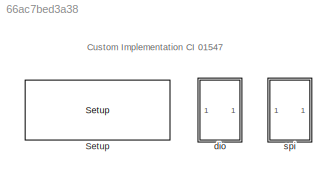
MODEL slx_66ac7bed3a38
KIND model
CONFIG AbsTol = auto
CONFIG EnableMultiTasking = off
CONFIG FixedStep = auto
CONFIG MaxStep = auto
CONFIG MinStep = auto
CONFIG PreLoadFcn = if ~exist('Ts', 'var')\nTs = 0.001;\nend\nif ~exist('FPGA_Frequency', 'var')\nFPGA_Frequency = 75000000;\nend\n
CONFIG RelTol = 1e-3
CONFIG SampleTimeConstraint = Unconstrained
CONFIG Solver = VariableStepAuto
CONFIG SolverName = VariableStepAuto
CONFIG StartTime = 0.0
CONFIG StopTime = 10.0
BLOCK [Reference] Setup  REF=speedgoatlib_fpga/Setup/Setup
  Ports = []
  SourceBlock = speedgoatlib_fpga/Setup/Setup
  SourceProductName = Simulink Real-Time: Speedgoat I/O Driver Library
  SourceType = setup_IO316-IO318, IO331
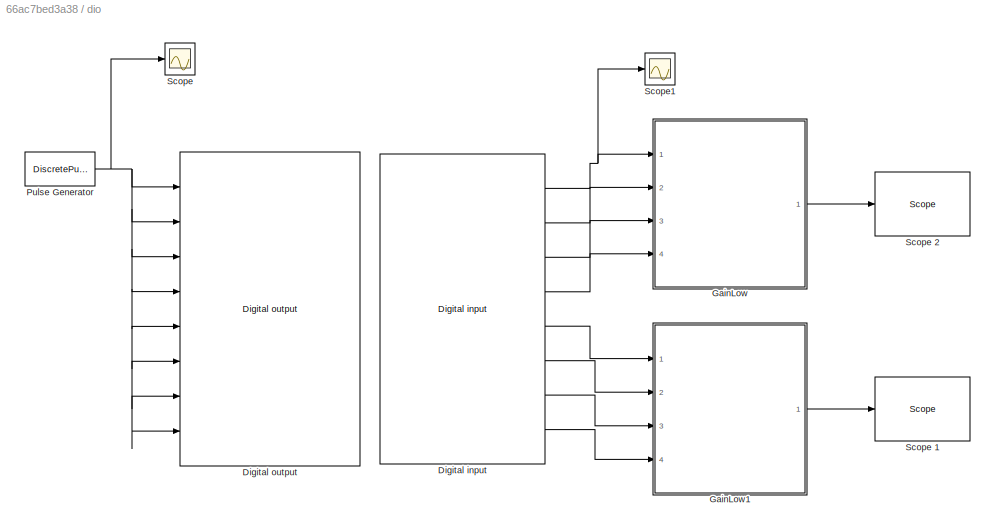
BLOCK [SubSystem] dio
  Ports = []
  RequestExecContextInheritance = off
  Variant = off
BLOCK [Reference] dio/Digital input  REF=speedgoatlib_fpga/Digital IO/Digital input
  Ports = [0, 8]
  SourceBlock = speedgoatlib_fpga/Digital IO/Digital input
  SourceProductName = Simulink Real-Time: Speedgoat I/O Driver Library
  SourceType = di_fpga_a2
BLOCK [Reference] dio/Digital output  REF=speedgoatlib_fpga/Digital IO/Digital output
  Ports = [8]
  SourceBlock = speedgoatlib_fpga/Digital IO/Digital output
  SourceProductName = Simulink Real-Time: Speedgoat I/O Driver Library
  SourceType = do_fpga_a2
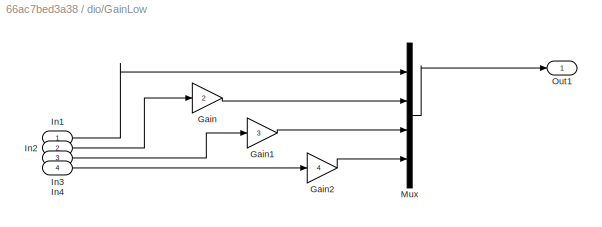
BLOCK [SubSystem] dio/GainLow
  Ports = [4, 1]
  RequestExecContextInheritance = off
  Variant = off
BLOCK [Gain] dio/GainLow/Gain
  Gain = 2
  OutDataTypeStr = Inherit: Inherit via internal rule
  ParamDataTypeStr = Inherit: Inherit via internal rule
  SaturateOnIntegerOverflow = off
BLOCK [Gain] dio/GainLow/Gain1
  Gain = 3
  OutDataTypeStr = Inherit: Inherit via internal rule
  ParamDataTypeStr = Inherit: Inherit via internal rule
  SaturateOnIntegerOverflow = off
BLOCK [Gain] dio/GainLow/Gain2
  Gain = 4
  OutDataTypeStr = Inherit: Inherit via internal rule
  ParamDataTypeStr = Inherit: Inherit via internal rule
  SaturateOnIntegerOverflow = off
BLOCK [Inport] dio/GainLow/In1
  IconDisplay = Port number
BLOCK [Inport] dio/GainLow/In2
  IconDisplay = Port number
  Port = 2
BLOCK [Inport] dio/GainLow/In3
  IconDisplay = Port number
  Port = 3
BLOCK [Inport] dio/GainLow/In4
  IconDisplay = Port number
  Port = 4
BLOCK [Mux] dio/GainLow/Mux
  DisplayOption = bar
  Ports = [4, 1]
BLOCK [Outport] dio/GainLow/Out1
  IconDisplay = Port number
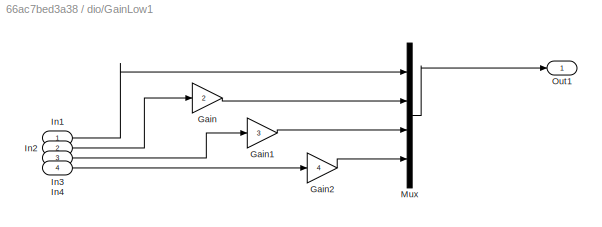
BLOCK [SubSystem] dio/GainLow1
  Ports = [4, 1]
  RequestExecContextInheritance = off
  Variant = off
BLOCK [Gain] dio/GainLow1/Gain
  Gain = 2
  OutDataTypeStr = Inherit: Inherit via internal rule
  ParamDataTypeStr = Inherit: Inherit via internal rule
  SaturateOnIntegerOverflow = off
BLOCK [Gain] dio/GainLow1/Gain1
  Gain = 3
  OutDataTypeStr = Inherit: Inherit via internal rule
  ParamDataTypeStr = Inherit: Inherit via internal rule
  SaturateOnIntegerOverflow = off
BLOCK [Gain] dio/GainLow1/Gain2
  Gain = 4
  OutDataTypeStr = Inherit: Inherit via internal rule
  ParamDataTypeStr = Inherit: Inherit via internal rule
  SaturateOnIntegerOverflow = off
BLOCK [Inport] dio/GainLow1/In1
  IconDisplay = Port number
BLOCK [Inport] dio/GainLow1/In2
  IconDisplay = Port number
  Port = 2
BLOCK [Inport] dio/GainLow1/In3
  IconDisplay = Port number
  Port = 3
BLOCK [Inport] dio/GainLow1/In4
  IconDisplay = Port number
  Port = 4
BLOCK [Mux] dio/GainLow1/Mux
  DisplayOption = bar
  Ports = [4, 1]
BLOCK [Outport] dio/GainLow1/Out1
  IconDisplay = Port number
BLOCK [DiscretePulseGenerator] dio/Pulse Generator
  Period = 20
  Ports = [0, 1]
  PulseWidth = 10
  SampleTime = Ts
BLOCK [Scope] dio/Scope
  NumInputPorts = 1
  Ports = [1]
  ScopeSpecificationString = Simulink.scopes.TimeScopeBlockCfg('CurrentConfiguration', extmgr.ConfigurationSet(extmgr.Configuration('Core','General UI',true),extmgr.Configuration('Core','Source UI',true),extmgr.Configuration('Sources','WiredSimulink',true),extmgr.Configuration('Visuals','Time Domain',true,'SerializedDisplays',{struct('MinYLimReal','-0.01623','MaxYLimReal','1.05421','YLabelReal','','MinYLimMag','0.00000','MaxY...<+1384ch>
BLOCK [Reference] dio/Scope 1  REF=slrtlib/Displays and
Logging/Scope 
  Ports = [1]
  SourceBlock = slrtlib/Displays and\nLogging/Scope
  SourceProductBaseCode = XP
  SourceProductName = Simulink Real-Time
  SourceType = xpcscopeblock
BLOCK [Reference] dio/Scope 2  REF=slrtlib/Displays and
Logging/Scope 
  Ports = [1]
  SourceBlock = slrtlib/Displays and\nLogging/Scope
  SourceProductBaseCode = XP
  SourceProductName = Simulink Real-Time
  SourceType = xpcscopeblock
BLOCK [Scope] dio/Scope1
  NumInputPorts = 1
  Ports = [1]
  ScopeSpecificationString = Simulink.scopes.TimeScopeBlockCfg('CurrentConfiguration', extmgr.ConfigurationSet(extmgr.Configuration('Core','General UI',true),extmgr.Configuration('Core','Source UI',true),extmgr.Configuration('Sources','WiredSimulink',true,'DataLoggingVariableName','ScopeData1'),extmgr.Configuration('Visuals','Time Domain',true),extmgr.Configuration('Tools','Plot Navigation',true),extmgr.Configuration('Tools',...<+40ch>
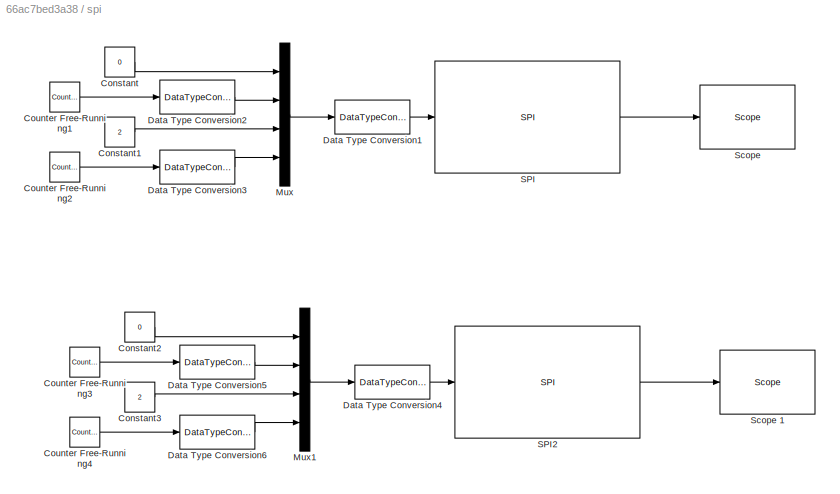
BLOCK [SubSystem] spi
  Ports = []
  RequestExecContextInheritance = off
  Variant = off
BLOCK [Constant] spi/Constant
  Value = 0
BLOCK [Constant] spi/Constant1
  Value = 2
BLOCK [Constant] spi/Constant2
  Value = 0
BLOCK [Constant] spi/Constant3
  Value = 2
BLOCK [Reference] spi/Counter Free-Running1  REF=simulink/Sources/Counter
Free-Running
  Ports = [0, 1]
  SourceBlock = simulink/Sources/Counter\nFree-Running
  SourceProductBaseCode = SL
  SourceProductName = Simulink
  SourceType = Counter Free-Running
BLOCK [Reference] spi/Counter Free-Running2  REF=simulink/Sources/Counter
Free-Running
  Ports = [0, 1]
  SourceBlock = simulink/Sources/Counter\nFree-Running
  SourceProductBaseCode = SL
  SourceProductName = Simulink
  SourceType = Counter Free-Running
BLOCK [Reference] spi/Counter Free-Running3  REF=simulink/Sources/Counter
Free-Running
  Ports = [0, 1]
  SourceBlock = simulink/Sources/Counter\nFree-Running
  SourceProductBaseCode = SL
  SourceProductName = Simulink
  SourceType = Counter Free-Running
BLOCK [Reference] spi/Counter Free-Running4  REF=simulink/Sources/Counter
Free-Running
  Ports = [0, 1]
  SourceBlock = simulink/Sources/Counter\nFree-Running
  SourceProductBaseCode = SL
  SourceProductName = Simulink
  SourceType = Counter Free-Running
BLOCK [DataTypeConversion] spi/Data Type Conversion1
  RndMeth = Floor
  SaturateOnIntegerOverflow = off
BLOCK [DataTypeConversion] spi/Data Type Conversion2
  RndMeth = Floor
  SaturateOnIntegerOverflow = off
BLOCK [DataTypeConversion] spi/Data Type Conversion3
  RndMeth = Floor
  SaturateOnIntegerOverflow = off
BLOCK [DataTypeConversion] spi/Data Type Conversion4
  RndMeth = Floor
  SaturateOnIntegerOverflow = off
BLOCK [DataTypeConversion] spi/Data Type Conversion5
  RndMeth = Floor
  SaturateOnIntegerOverflow = off
BLOCK [DataTypeConversion] spi/Data Type Conversion6
  RndMeth = Floor
  SaturateOnIntegerOverflow = off
BLOCK [Mux] spi/Mux
  DisplayOption = bar
  Ports = [4, 1]
BLOCK [Mux] spi/Mux1
  DisplayOption = bar
  Ports = [4, 1]
BLOCK [Reference] spi/SPI  REF=speedgoatlib_fpga_spi/SPI
  Ports = [1, 1]
  SourceBlock = speedgoatlib_fpga_spi/SPI
  SourceProductName = Simulink Real-Time: Speedgoat I/O Driver Library
  SourceType = spi_fpga_a1
BLOCK [Reference] spi/SPI2  REF=speedgoatlib_fpga_spi/SPI
  Ports = [1, 1]
  SourceBlock = speedgoatlib_fpga_spi/SPI
  SourceProductName = Simulink Real-Time: Speedgoat I/O Driver Library
  SourceType = spi_fpga_a1
BLOCK [Reference] spi/Scope   REF=slrtlib/Displays and
Logging/Scope 
  Ports = [1]
  SourceBlock = slrtlib/Displays and\nLogging/Scope
  SourceProductBaseCode = XP
  SourceProductName = Simulink Real-Time
  SourceType = xpcscopeblock
BLOCK [Reference] spi/Scope 1  REF=slrtlib/Displays and
Logging/Scope 
  Ports = [1]
  SourceBlock = slrtlib/Displays and\nLogging/Scope
  SourceProductBaseCode = XP
  SourceProductName = Simulink Real-Time
  SourceType = xpcscopeblock
ANNOTATION (root): Custom Implementation CI 01547
NET dio/Digital input:1 -> dio/GainLow:1, dio/Scope1:1
LINE dio/Digital input:2 -> dio/GainLow:2
LINE dio/Digital input:3 -> dio/GainLow:3
LINE dio/Digital input:4 -> dio/GainLow:4
LINE dio/Digital input:5 -> dio/GainLow1:1
LINE dio/Digital input:6 -> dio/GainLow1:2
LINE dio/Digital input:7 -> dio/GainLow1:3
LINE dio/Digital input:8 -> dio/GainLow1:4
LINE dio/GainLow/Gain1:1 -> dio/GainLow/Mux:3
LINE dio/GainLow/Gain2:1 -> dio/GainLow/Mux:4
LINE dio/GainLow/Gain:1 -> dio/GainLow/Mux:2
LINE dio/GainLow/In1:1 -> dio/GainLow/Mux:1
LINE dio/GainLow/In2:1 -> dio/GainLow/Gain:1
LINE dio/GainLow/In3:1 -> dio/GainLow/Gain1:1
LINE dio/GainLow/In4:1 -> dio/GainLow/Gain2:1
LINE dio/GainLow/Mux:1 -> dio/GainLow/Out1:1
LINE dio/GainLow1/Gain1:1 -> dio/GainLow1/Mux:3
LINE dio/GainLow1/Gain2:1 -> dio/GainLow1/Mux:4
LINE dio/GainLow1/Gain:1 -> dio/GainLow1/Mux:2
LINE dio/GainLow1/In1:1 -> dio/GainLow1/Mux:1
LINE dio/GainLow1/In2:1 -> dio/GainLow1/Gain:1
LINE dio/GainLow1/In3:1 -> dio/GainLow1/Gain1:1
LINE dio/GainLow1/In4:1 -> dio/GainLow1/Gain2:1
LINE dio/GainLow1/Mux:1 -> dio/GainLow1/Out1:1
LINE dio/GainLow1:1 -> dio/Scope 1:1
LINE dio/GainLow:1 -> dio/Scope 2:1
NET dio/Pulse Generator:1 -> dio/Digital output:1, dio/Digital output:2, dio/Digital output:3, dio/Digital output:4, dio/Digital output:5, dio/Digital output:6, dio/Digital output:7, dio/Digital output:8, dio/Scope:1
LINE spi/Constant1:1 -> spi/Mux:3
LINE spi/Constant2:1 -> spi/Mux1:1
LINE spi/Constant3:1 -> spi/Mux1:3
LINE spi/Constant:1 -> spi/Mux:1
LINE spi/Counter Free-Running1:1 -> spi/Data Type Conversion2:1
LINE spi/Counter Free-Running2:1 -> spi/Data Type Conversion3:1
LINE spi/Counter Free-Running3:1 -> spi/Data Type Conversion5:1
LINE spi/Counter Free-Running4:1 -> spi/Data Type Conversion6:1
LINE spi/Data Type Conversion1:1 -> spi/SPI:1
LINE spi/Data Type Conversion2:1 -> spi/Mux:2
LINE spi/Data Type Conversion3:1 -> spi/Mux:4
LINE spi/Data Type Conversion4:1 -> spi/SPI2:1
LINE spi/Data Type Conversion5:1 -> spi/Mux1:2
LINE spi/Data Type Conversion6:1 -> spi/Mux1:4
LINE spi/Mux1:1 -> spi/Data Type Conversion4:1
LINE spi/Mux:1 -> spi/Data Type Conversion1:1
LINE spi/SPI2:1 -> spi/Scope 1:1
LINE spi/SPI:1 -> spi/Scope :1
note: NET lines group one-source signal fan-out (src -> all destinations, sorted); 1:1 wires keep LINE
